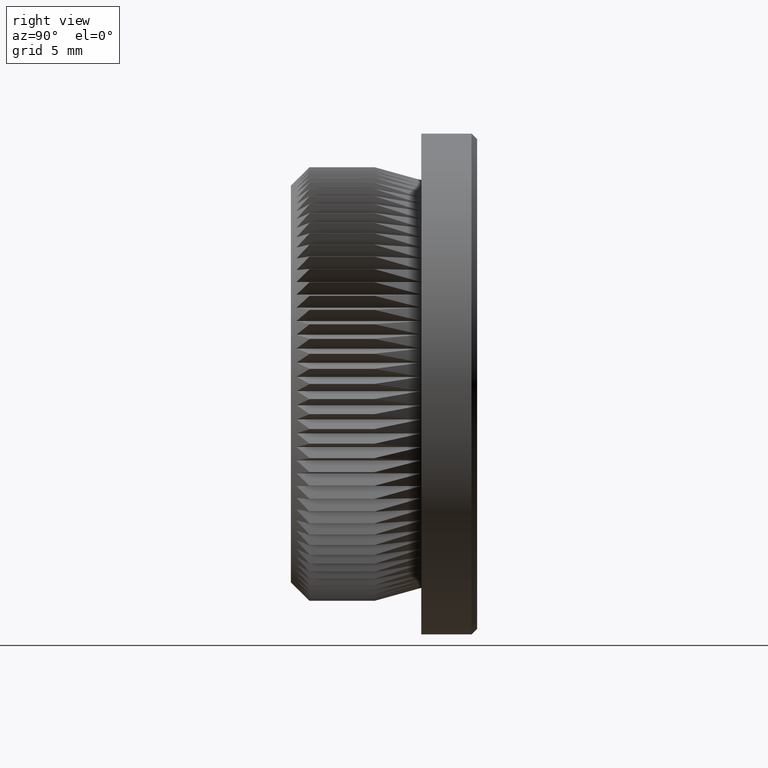
[diagram: clean part render]
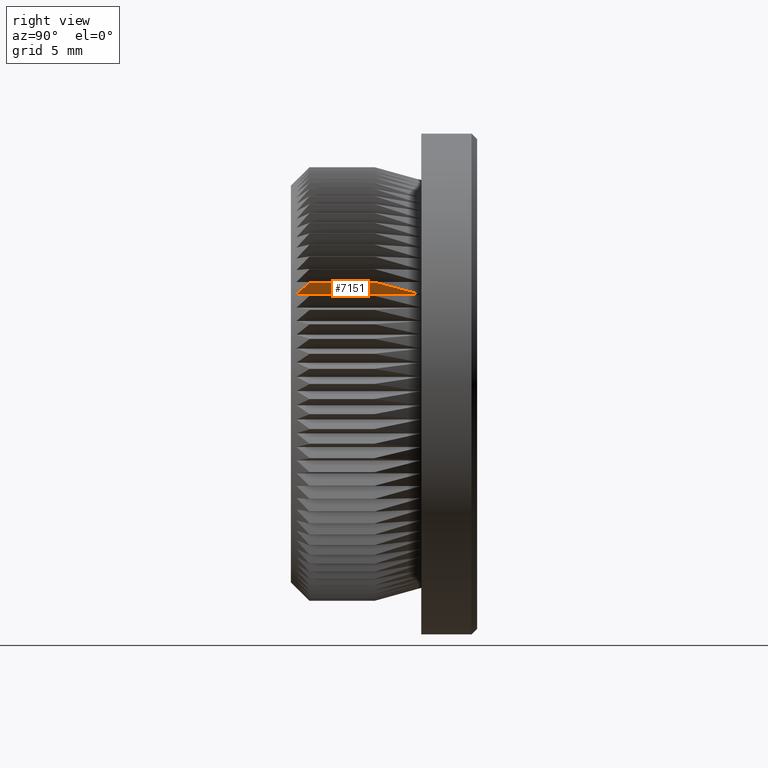
[diagram: same view with one face highlighted and labeled with its STEP entity id]
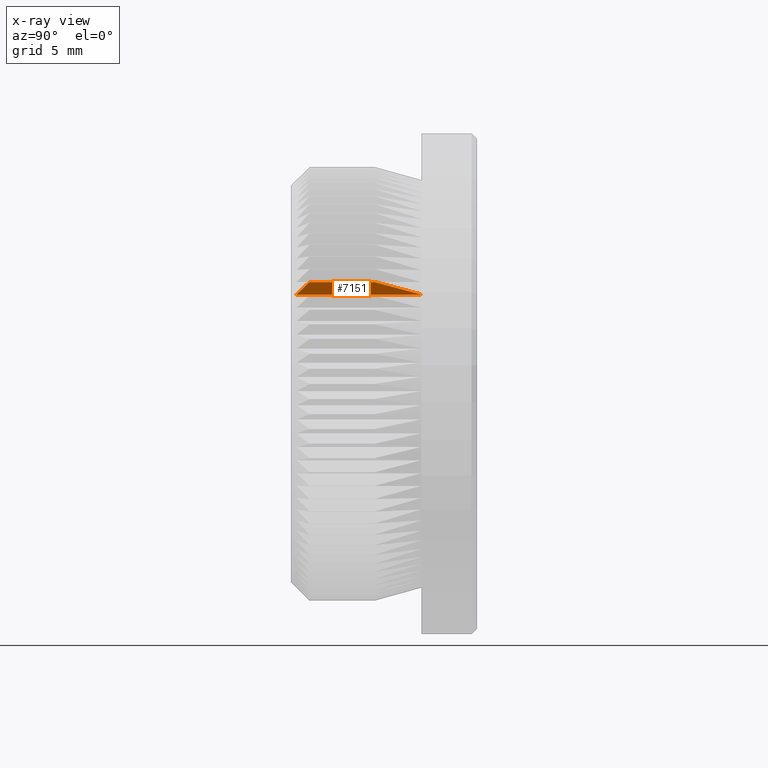
[diagram: x-ray of the same camera — body ghosted, the highlighted face saturated]
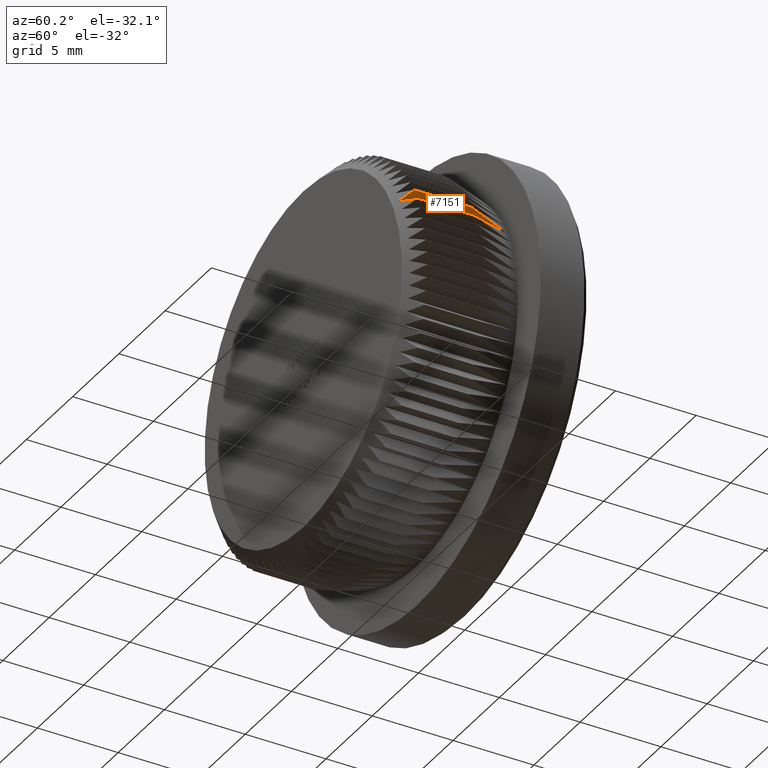
[diagram: same view with one face highlighted and labeled with its STEP entity id]
A machine part, right view. The second image highlights one B-rep face of the part: STEP entity #7151.
The next image is the same camera in x-ray: the body ghosted, the highlighted face saturated — about 0% of this face is hidden behind the body in this view.
A second angle (auxiliary view) of the same face is appended — the face is thin or edge-on in the first view.
In plain terms, the highlighted planar face has unit normal (-0.829, 0, 0.5592).
Its self-contained STEP definition (entity closure, byte-faithful):
#47 = CARTESIAN_POINT ( 'NONE',  ( 10.14140145569923700, 5.334039586568214200, 5.244349180644762000 ) ) ;
#1079 = VECTOR ( 'NONE', #22282, 1000.000000000000000 ) ;
#1246 = VERTEX_POINT ( 'NONE', #11946 ) ;
#1282 = EDGE_CURVE ( 'NONE', #19972, #22885, #2493, .T. ) ;
#1382 = CARTESIAN_POINT ( 'NONE',  ( 9.841794806975823200, 10.00099999999999900, 4.800164057340511500 ) ) ;
#1825 = ORIENTED_EDGE ( 'NONE', *, *, #6338, .F. ) ;
#2493 = B_SPLINE_CURVE_WITH_KNOTS ( 'NONE', 3,
 ( #15723, #47, #6103, #7843 ),
 .UNSPECIFIED., .F., .F.,
 ( 4, 4 ),
 ( 2.098204760690059400E-007, 0.002625198007172701300 ),
 .UNSPECIFIED. ) ;
#3665 = CARTESIAN_POINT ( 'NONE',  ( 9.841794806975823200, 0.3000000000000087600, 4.800164057340511500 ) ) ;
#5398 = PLANE ( 'NONE',  #18002 ) ;
#5818 = CARTESIAN_POINT ( 'NONE',  ( 10.28934584561806500, 4.500000000000000900, 5.463685758648850300 ) ) ;
#6103 = CARTESIAN_POINT ( 'NONE',  ( 9.992318801918088400, 6.167437807686551000, 5.023325057066527300 ) ) ;
#6338 = EDGE_CURVE ( 'NONE', #1246, #25203, #21843, .T. ) ;
#7151 = ADVANCED_FACE ( 'NONE', ( #11458 ), #5398, .F. ) ;
#7705 = CARTESIAN_POINT ( 'NONE',  ( 10.14075820961598300, 0.7654535480586469600, 5.243395529108582300 ) ) ;
#7843 = CARTESIAN_POINT ( 'NONE',  ( 9.841794806975823200, 7.000000000000003600, 4.800164057340511500 ) ) ;
#8263 = VECTOR ( 'NONE', #15668, 1000.000000000000000 ) ;
#8507 = CARTESIAN_POINT ( 'NONE',  ( 10.28934584561806500, 10.00099999999999900, 5.463685758648851200 ) ) ;
#9393 = CARTESIAN_POINT ( 'NONE',  ( 9.991614448132686700, 0.5320265769154323100, 5.022280809636266800 ) ) ;
#11458 = FACE_OUTER_BOUND ( 'NONE', #15765, .T. ) ;
#11719 = CARTESIAN_POINT ( 'NONE',  ( 9.841794806975823200, 10.00099999999999900, 4.800164057340511500 ) ) ;
#11946 = CARTESIAN_POINT ( 'NONE',  ( 9.841794806975823200, 0.3000000000000087600, 4.800164057340511500 ) ) ;
#13003 = EDGE_CURVE ( 'NONE', #22885, #1246, #13461, .T. ) ;
#13354 = CARTESIAN_POINT ( 'NONE',  ( 10.28934584561806500, 1.000000000000010200, 5.463685758648851200 ) ) ;
#13461 = LINE ( 'NONE', #11719, #8263 ) ;
#15668 = DIRECTION ( 'NONE',  ( -0.0000000000000000000, -1.000000000000000000, -0.0000000000000000000 ) ) ;
#15723 = CARTESIAN_POINT ( 'NONE',  ( 10.28934584561806500, 4.500000000000000900, 5.463685758648850300 ) ) ;
#15765 = EDGE_LOOP ( 'NONE', ( #18457, #1825, #21794, #23275 ) ) ;
#16343 = EDGE_CURVE ( 'NONE', #19972, #25203, #19492, .T. ) ;
#18002 = AXIS2_PLACEMENT_3D ( 'NONE', #1382, #24991, #21071 ) ;
#18457 = ORIENTED_EDGE ( 'NONE', *, *, #16343, .T. ) ;
#18497 = CARTESIAN_POINT ( 'NONE',  ( 10.28934584561806500, 1.000000000000010200, 5.463685758648851200 ) ) ;
#19492 = LINE ( 'NONE', #8507, #1079 ) ;
#19972 = VERTEX_POINT ( 'NONE', #5818 ) ;
#20196 = CARTESIAN_POINT ( 'NONE',  ( 9.841794806975823200, 7.000000000000003600, 4.800164057340511500 ) ) ;
#21071 = DIRECTION ( 'NONE',  ( 0.5591929034707381300, 0.0000000000000000000, 0.8290375725550475100 ) ) ;
#21794 = ORIENTED_EDGE ( 'NONE', *, *, #13003, .F. ) ;
#21843 = B_SPLINE_CURVE_WITH_KNOTS ( 'NONE', 3,
 ( #3665, #9393, #7705, #13354 ),
 .UNSPECIFIED., .F., .F.,
 ( 4, 4 ),
 ( 3.191310226617021100E-007, 0.001063598482979066500 ),
 .UNSPECIFIED. ) ;
#22282 = DIRECTION ( 'NONE',  ( -0.0000000000000000000, -1.000000000000000000, -0.0000000000000000000 ) ) ;
#22885 = VERTEX_POINT ( 'NONE', #20196 ) ;
#23275 = ORIENTED_EDGE ( 'NONE', *, *, #1282, .F. ) ;
#24991 = DIRECTION ( 'NONE',  ( -0.8290375725550476200, 0.0000000000000000000, 0.5591929034707382500 ) ) ;
#25203 = VERTEX_POINT ( 'NONE', #18497 ) ;